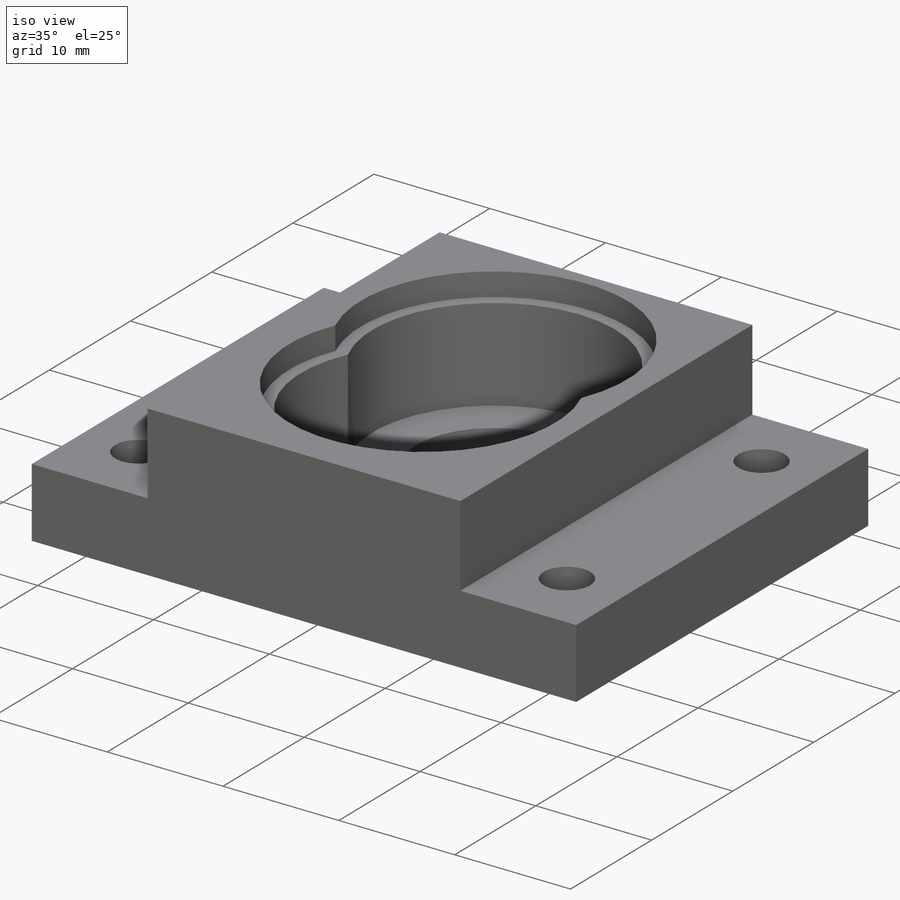
[diagram: iso view]
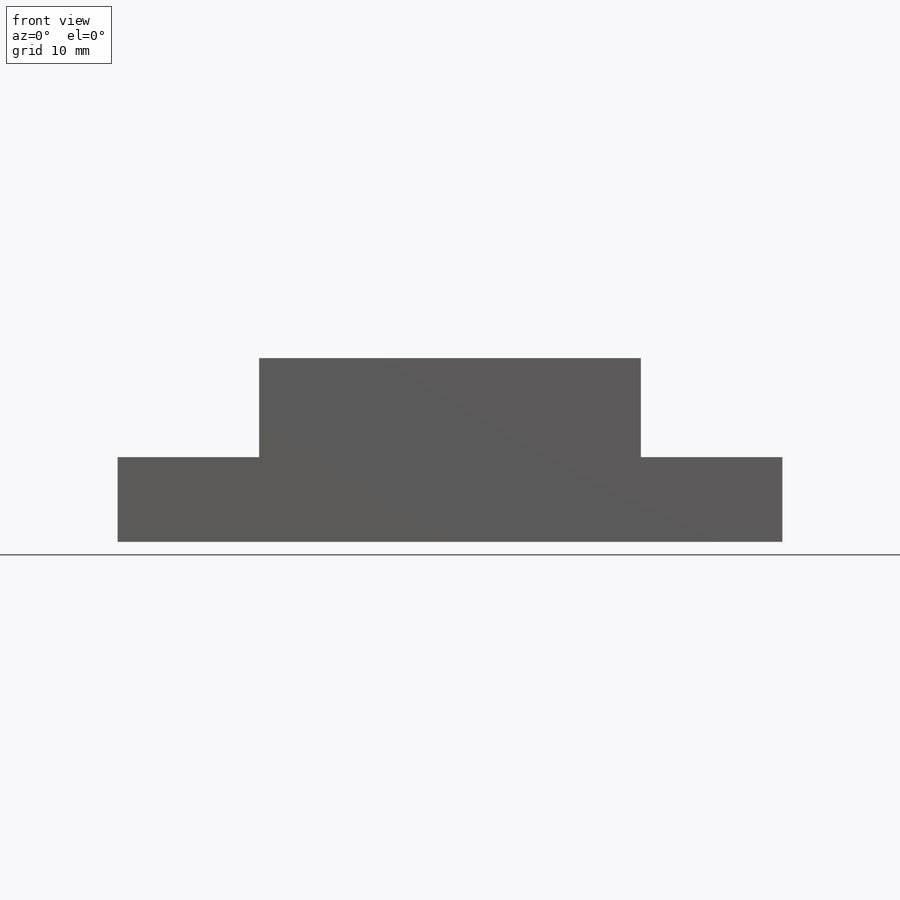
[diagram: front view]
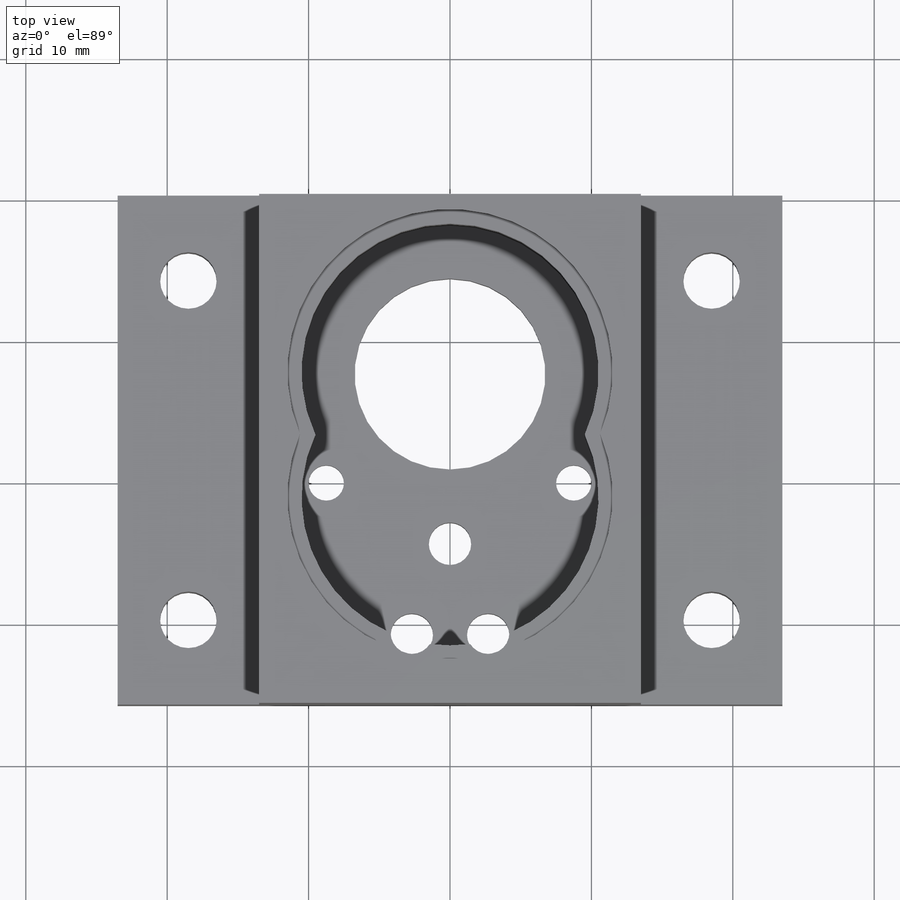
[diagram: top view]
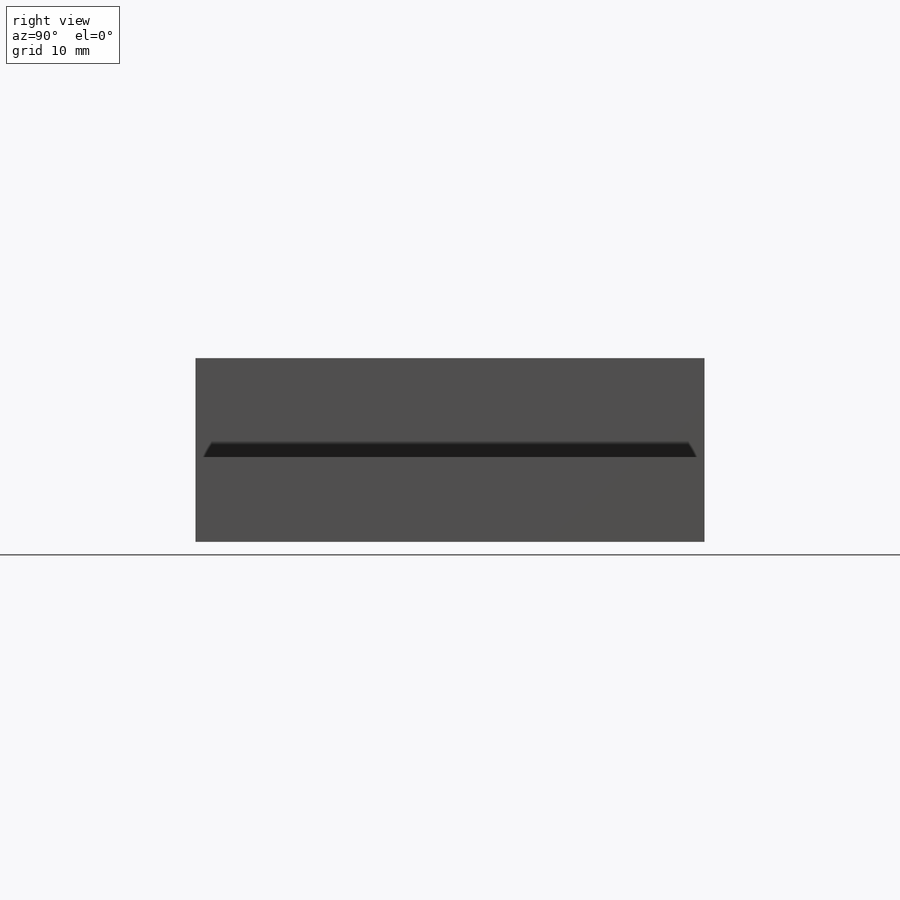
[diagram: right view]
SOLIDWORKS PART (.sldprt)
format: sldprt  version: not decoded by parser v0  size: 347,648 bytes
history: native  units: mm
features: sketch x7, plane x3, extrude x3, cut_extrude x3, material x1 (+10 scaffold rows collapsed)
feature tree (27):
  scaffold x10  (default folders/planes/origin — collapsed)
  material  "材质 <未指定>"
  plane  "前视基准面"
  plane  "上视基准面"
  plane  "右视基准面"
  sketch  "草图1"  dims[c1.D3=13.5mm c1.D4=2.5mm c1.D7=3.0mm c1.D12=3.0mm c1.D1=7.7mm c1.D2=18.4323mm c1.D5=8.5mm c1.D6=2.7mm c1.D8=27.0mm c1.D9=35.0mm c1.D10=5.0mm c1.D11=13.0mm c1.D13=12.0mm c2.D5=17.5mm c2.D9=36.0mm]
  extrude  "凸台-拉伸1"  Depth=3mm
  sketch  "草图4"  dims[D1=10.0mm D2=6.0mm]
  extrude  "凸台-拉伸3"  [1 undecoded]
  sketch  "草图6"  dims[D1=6.0mm D2=6.0mm]
  cut_extrude  "切除-拉伸3"  Depth=1mm
  sketch  "草图7"  dims[c1.D1=11.5mm c1.D2=11.5mm c2.D1=10.5mm c2.D2=10.5mm c2.D3=~4.419276mm c2.D5=27.0mm c2.D4=1.0mm]
  extrude  "凸台-拉伸4"  Depth=10mm
  sketch  "草图9"  dims[D1=10.5mm D2=1.0mm]
  cut_extrude  "切除-拉伸5"  Depth=2mm
  sketch  "草图11"
  sketch  "草图13"  dims[c1.D3=4.0mm c1.D4=4.0mm c1.D1=6.0mm c1.D2=6.0mm c2.D3=36.0mm]
  cut_extrude  "切除-拉伸6"  Depth=10mm
decode coverage: 11 of 13 modeling features carry decoded parameters
note: ~ marks probable driven/reference dimensions
note: 1 parameter value undecoded
note: suppression state not decoded; provenance and decode notes live in map.json
